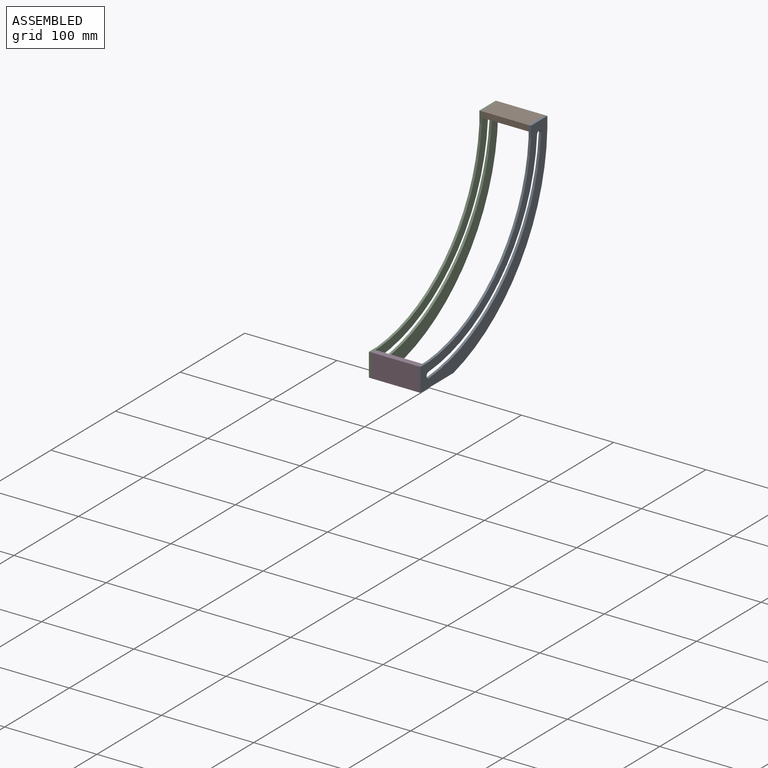
[diagram: assembled view]
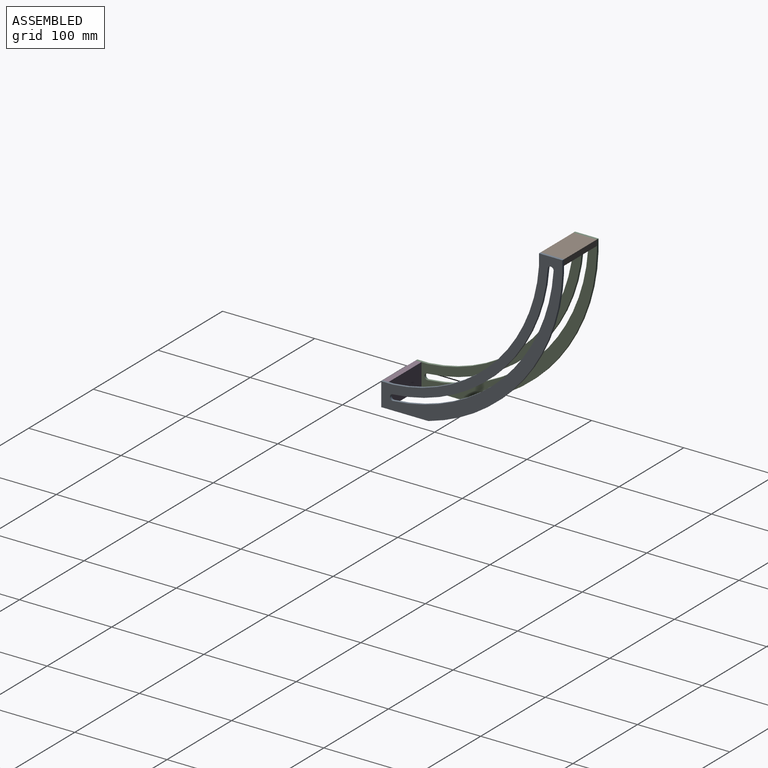
[diagram: assembled view, second angle]
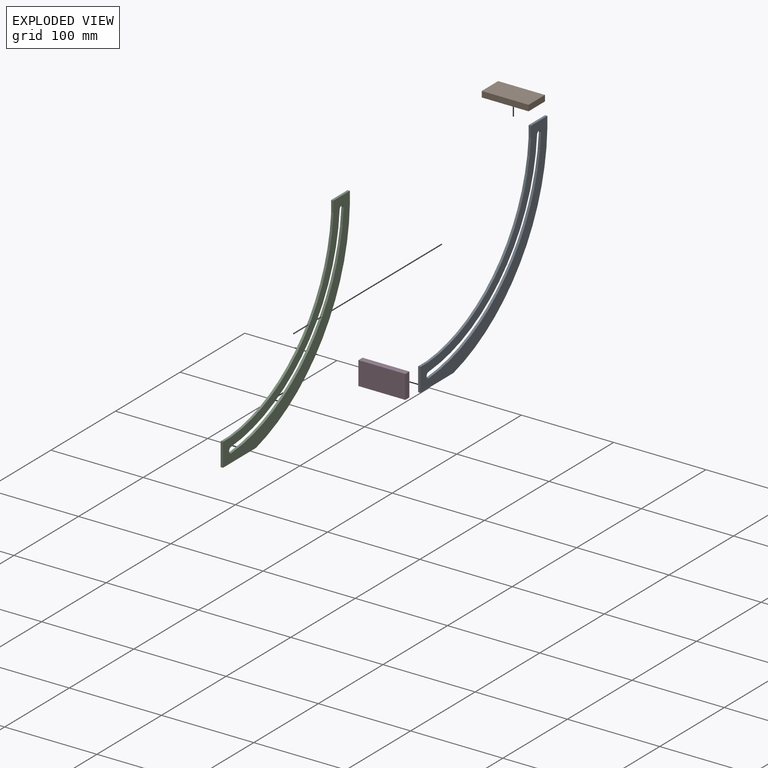
[diagram: exploded view]
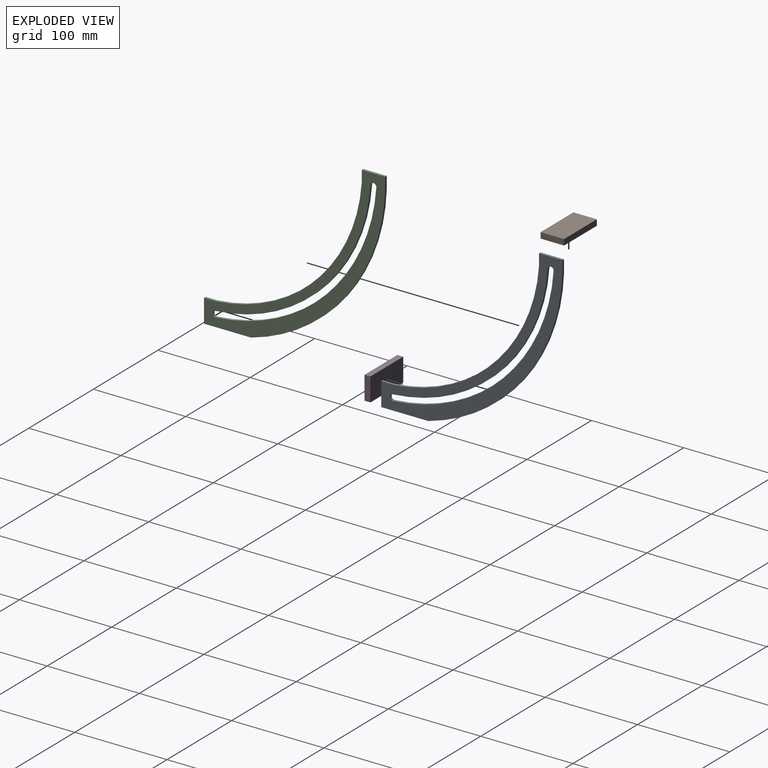
[diagram: exploded view, second angle]
ASSEMBLY  parts=4 mates=12
PART A: 14 faces, bbox 2.5x196.4x196.4 mm
  f0: plane 12.7x2.54mm, normal (0,0,1), area 32.3mm2, adj f1,f11,f12,f13
  f1: plane 25.4x2.54mm, normal (0,-1,0), area 64.5mm2, adj f0,f2,f12,f13
  f2: plane 51.06x2.54mm, normal (0,0,-1), area 129.7mm2, adj f1,f3,f12,f13
  f3: cylinder r=196.85mm len=183.68mm, axis (-1,0,0), area 637.3mm2, adj f2,f4,f12,f13
  f4: plane 12.7x2.54mm, normal (0,1,0), area 32.3mm2, adj f3,f5,f12,f13
  f5: plane 25.4x2.54mm, normal (0,0,1), area 64.5mm2, adj f4,f6,f12,f13
  f6: plane 12.7x2.54mm, normal (0,-1,0), area 32.3mm2, adj f5,f11,f12,f13
  f7: cylinder r=187.32mm len=173.96mm, axis (-1,0,0), area 681.7mm2, adj f8,f10,f12,f13
  f8: cylinder r=3.17mm len=6.34mm, axis (-1,0,0), area 25.3mm2, adj f7,f9,f12,f13
  f9: cylinder r=180.97mm len=168.06mm, axis (-1,0,0), area 658.6mm2, adj f8,f10,f12,f13
  f10: cylinder r=3.17mm len=6.34mm, axis (-1,0,0), area 25.3mm2, adj f7,f9,f12,f13
  f11: cylinder r=171.45mm len=158.34mm, axis (-1,0,0), area 619.6mm2, adj f0,f6,f12,f13
  f12: plane 196.44x196.38mm, normal (1,0,0), area 6592.5mm2, adj f0,f1,f2,f3,f4,f5,f6,f7
  f13: plane 196.44x196.38mm, normal (-1,0,0), area 6592.5mm2, adj f0,f1,f2,f3,f4,f5,f6,f7
PART B: 6 faces, bbox 50.8x25.4x6.4 mm
  f0: plane 50.8x25.4mm, normal (0,0,1), area 1290.3mm2, adj f1,f3,f4,f5
  f1: plane 50.8x6.35mm, normal (0,-1,0), area 322.6mm2, adj f0,f2,f4,f5
  f2: plane 50.8x25.4mm, normal (0,0,-1), area 1290.3mm2, adj f1,f3,f4,f5
  f3: plane 50.8x6.35mm, normal (0,1,0), area 322.6mm2, adj f0,f2,f4,f5
  f4: plane 25.4x6.35mm, normal (1,0,0), area 161.3mm2, adj f0,f1,f2,f3
  f5: plane 25.4x6.35mm, normal (-1,0,0), area 161.3mm2, adj f0,f1,f2,f3
PART C: same geometry as A
PART D: same geometry as B
PLACE A t=(-32.64,-456.11,479.39)mm
PLACE B t=(-83.44,-4.4,209.04)mm
PLACE C t=(-85.98,-456.11,479.39)mm
PLACE D rot(axis=(1,0,0),90deg) t=(-83.44,-598.02,-162.99)mm
MATE planar B.f0 <-> A.f5  axis (0,0,1) through (-58.04,-115.17,-90.08)mm
MATE planar D.f0 <-> C.f1  axis (0,-1,0) through (-58.04,-298.9,-273.76)mm
MATE planar C.f12 <-> D.f5  axis (1,0,0) through (-83.44,-285.99,-276.96)mm
MATE planar D.f0 <-> A.f1  axis (0,-1,0) through (-58.04,-298.9,-273.76)mm
MATE planar D.f3 <-> A.f0  axis (0,0,1) through (-58.04,-295.73,-261.06)mm
MATE planar B.f1 <-> C.f6  axis (0,-1,0) through (-58.04,-127.87,-93.25)mm
MATE planar C.f12 <-> B.f5  axis (1,0,0) through (-83.44,-115.17,-90.08)mm
MATE planar B.f0 <-> C.f5  axis (0,0,1) through (-58.04,-115.17,-90.08)mm
MATE planar B.f1 <-> A.f6  axis (0,-1,0) through (-58.04,-127.87,-93.25)mm
MATE planar D.f4 <-> A.f13  axis (1,0,0) through (-32.64,-295.73,-273.76)mm
MATE planar D.f3 <-> C.f0  axis (0,0,1) through (-58.04,-295.73,-261.06)mm
MATE planar A.f13 <-> A.f12  axis (-1,0,0) through (-32.64,-182.47,-212.06)mm
